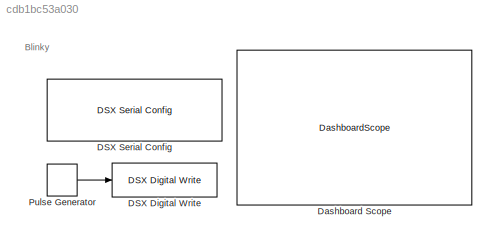
MODEL slx_cdb1bc53a030
KIND model
CONFIG AbsTol = auto
CONFIG EnableMultiTasking = off
CONFIG FixedStep = 0.001
CONFIG MaxStep = auto
CONFIG MinStep = auto
CONFIG RelTol = 1e-3
CONFIG SampleTimeConstraint = Unconstrained
CONFIG SolverName = FixedStepAuto
CONFIG StartTime = 0.0
CONFIG StopTime = inf
BLOCK [Reference] DSX Digital Write  REF=DSX_Lib/Write Blocks/DSX Digital Write
  NameLocation = top
  Ports = [1]
  SourceBlock = DSX_Lib/Write Blocks/DSX Digital Write
  SourceProductName = DSX Library
BLOCK [Reference] DSX Serial Config  REF=DSX_Lib/DSX Serial Config
  NameLocation = top
  Ports = []
  SourceBlock = DSX_Lib/DSX Serial Config
  SourceProductName = DSX Library
BLOCK [DashboardScope] Dashboard Scope
  Ymax = 1
  Ymin = 0
BLOCK [DiscretePulseGenerator] Pulse Generator
  Period = 4000
  Ports = [0, 1]
  PulseWidth = 1000
  SampleTime = 0.001
ANNOTATION (root): Blinky
LINE Pulse Generator:1 -> DSX Digital Write:1
